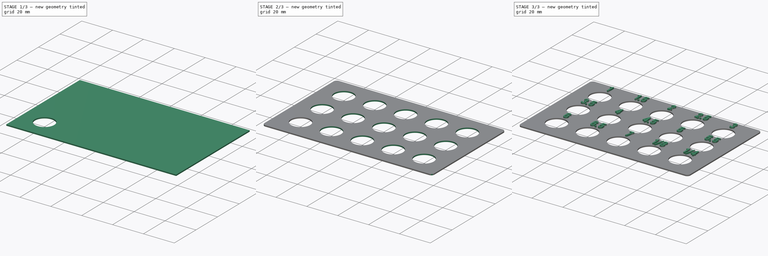
[diagram: build sequence overview — one tinted view per stage of 3, left to right]
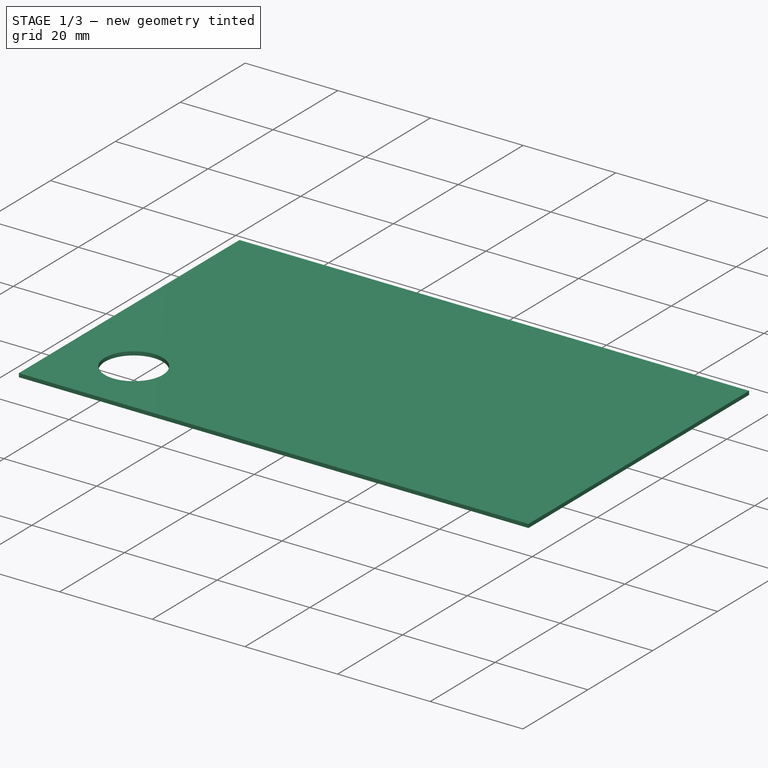
[diagram: stage 1 of 3 — iso view after this stage's code; geometry added in this stage tinted green]
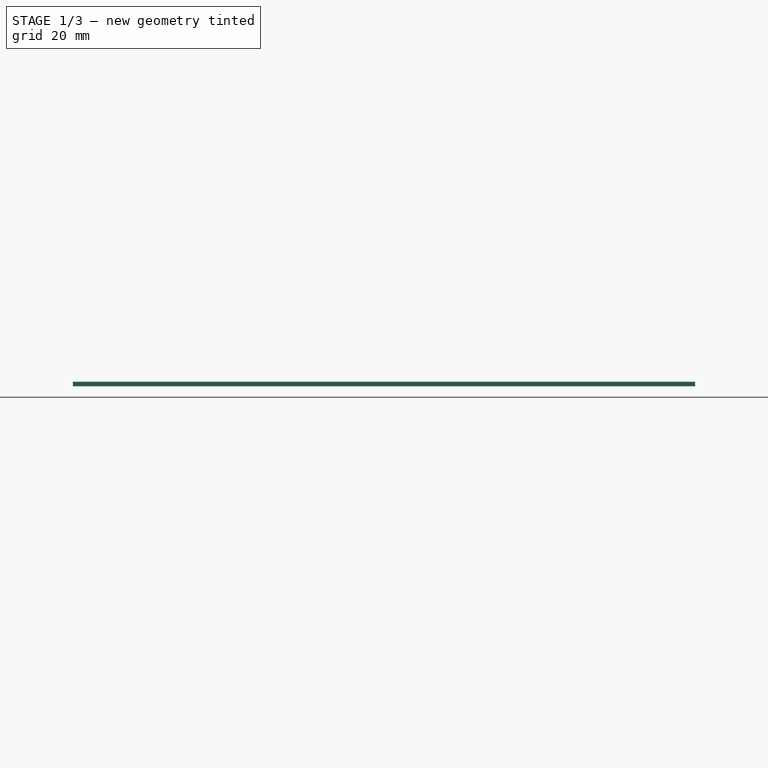
[diagram: stage 1 of 3 — front view after this stage's code; geometry added in this stage tinted green]
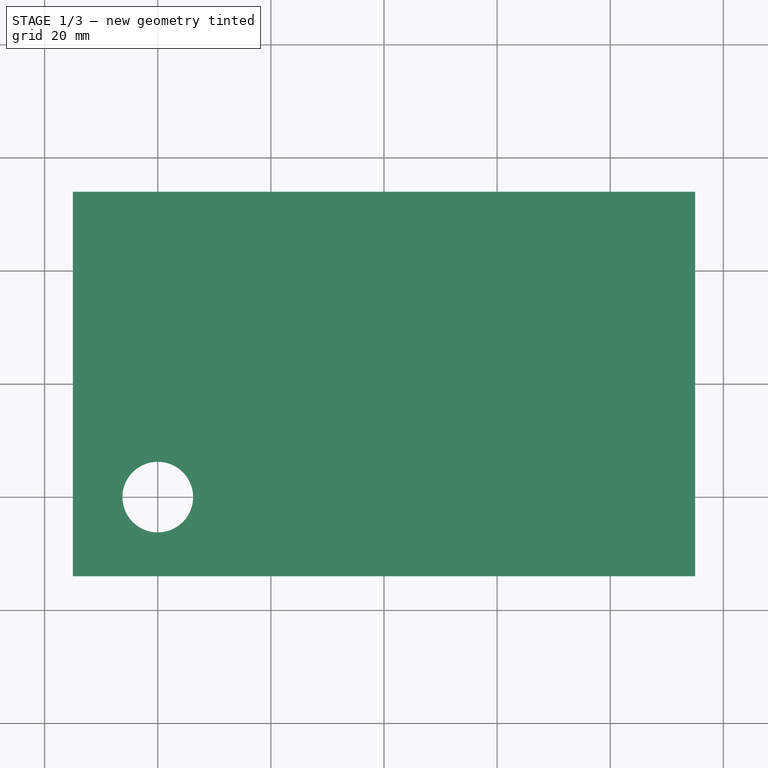
[diagram: stage 1 of 3 — top view after this stage's code; geometry added in this stage tinted green]
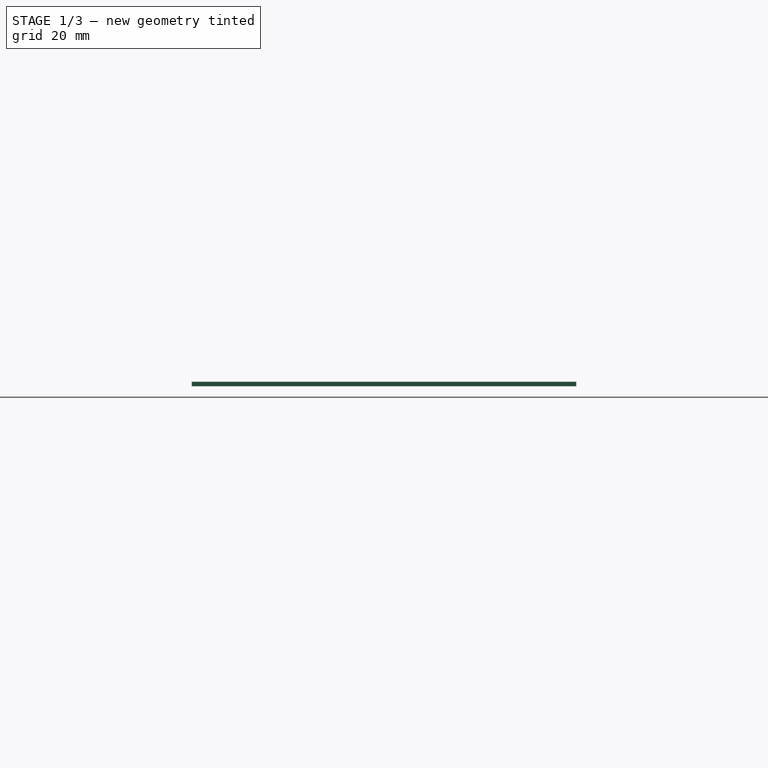
[diagram: stage 1 of 3 — right view after this stage's code; geometry added in this stage tinted green]
FCSTD DOCUMENT  (FreeCAD 2021.1015R24301 +3962 (Git))
Label: er11 box inset
License: All rights reserved
LicenseURL: http://en.wikipedia.org/wiki/All_rights_reserved
objects: Part::Part2DObjectPython×15, Sketcher::SketchObject×2, PartDesign::LinearPattern×2, Part::Compound×2, PartDesign::Pad×1, PartDesign::Pocket×1, Part::Extrusion×1, PartDesign::Fillet×1, PartDesign::Body×1
note: 36 computed .brp shape members not serialized (recipe doc carries the construction recipe); baked Part::Feature solids carry a one-line shape summary decoded from their .brp

FEATURE [Sketcher::SketchObject] Sketch004
  FullyConstrained = true
  MapMode = 5
  Support = -> [XY_Plane001]
  sketch-geometry (4):
    g0: LineSegment StartX=-55 StartY=34 StartZ=0 EndX=55 EndY=34 EndZ=0
    g1: LineSegment StartX=55 StartY=34 StartZ=0 EndX=55 EndY=-34 EndZ=0
    g2: LineSegment StartX=55 StartY=-34 StartZ=0 EndX=-55 EndY=-34 EndZ=0
    g3: LineSegment StartX=-55 StartY=-34 StartZ=0 EndX=-55 EndY=34 EndZ=0
  constraints (11):
    c: Coincident(g0,g1)
    c: Coincident(g1,g2)
    c: Coincident(g2,g3)
    c: Coincident(g3,g0)
    c: Horizontal(g0)
    c: Horizontal(g2)
    c: Vertical(g1)
    c: Vertical(g3)
    c: Symmetric(g1,g0,g-1)
    c: DistanceX(g0,g0) = 110
    c: DistanceY(g1,g1) = 68
FEATURE [PartDesign::Pad] Pad001
  ClaimChildren = false
  Direction = (1,1,1)
  Fit = 0
  FitJoin = 0
  InnerFit = 0
  InnerFitJoin = 0
  InnerTaperAngle = 0
  InnerTaperAngleRev = 0
  Length = 0.8
  Length2 = 100
  Linearize = true
  NewSolid = false
  Profile = -> Sketch004
  Refine = true
  Suppress = false
  Type = 0
  _ProfileBasedVersion = 1
FEATURE [Sketcher::SketchObject] Sketch005
  FullyConstrained = true
  MapMode = 5
  Support = -> [XY_Plane001]
  expr: Constraints[1] = -80mm / 2
  expr: Constraints[2] = -40mm / 2
  sketch-geometry (1):
    g0: Circle CenterX=-40 CenterY=-20 CenterZ=0 NormalX=0 NormalY=0 NormalZ=1 AngleXU=0 Radius=6.25
  constraints (3):
    c: Diameter(g0) = 12.5
    c: DistanceX(g0) = -40
    c: DistanceY(g0) = -20
FEATURE [PartDesign::Pocket] Pocket003
  BaseFeature = -> Pad001
  ClaimChildren = false
  Fit = 0
  FitJoin = 0
  InnerFit = 0
  InnerFitJoin = 0
  InnerTaperAngle = 0
  InnerTaperAngleRev = 0
  Length = 5
  Length2 = 100
  Linearize = true
  NewSolid = false
  Profile = -> Sketch005
  Refine = true
  Reversed = true
  Suppress = false
  Type = 1
  _ProfileBasedVersion = 1
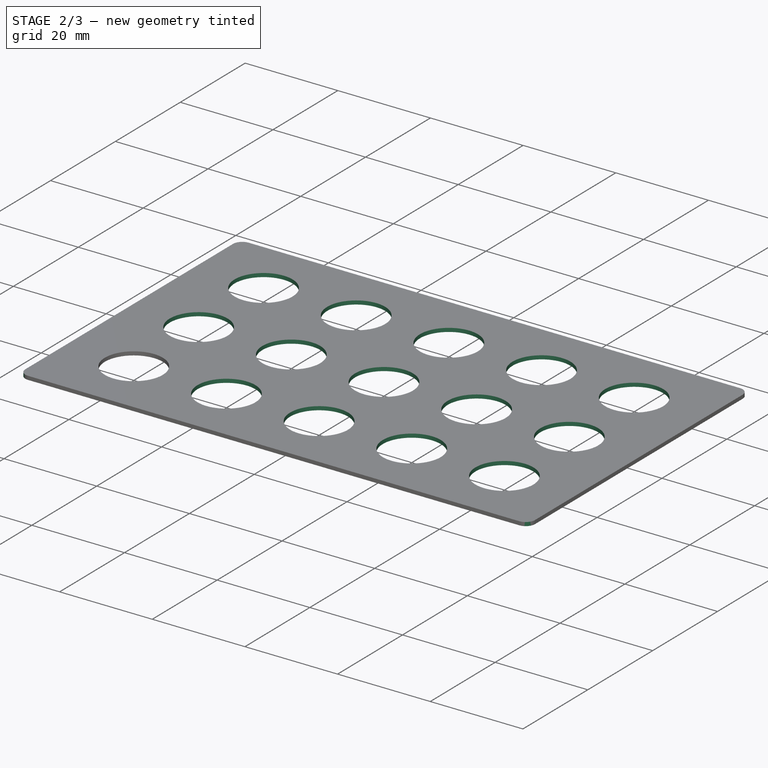
[diagram: stage 2 of 3 — iso view after this stage's code; geometry added in this stage tinted green]
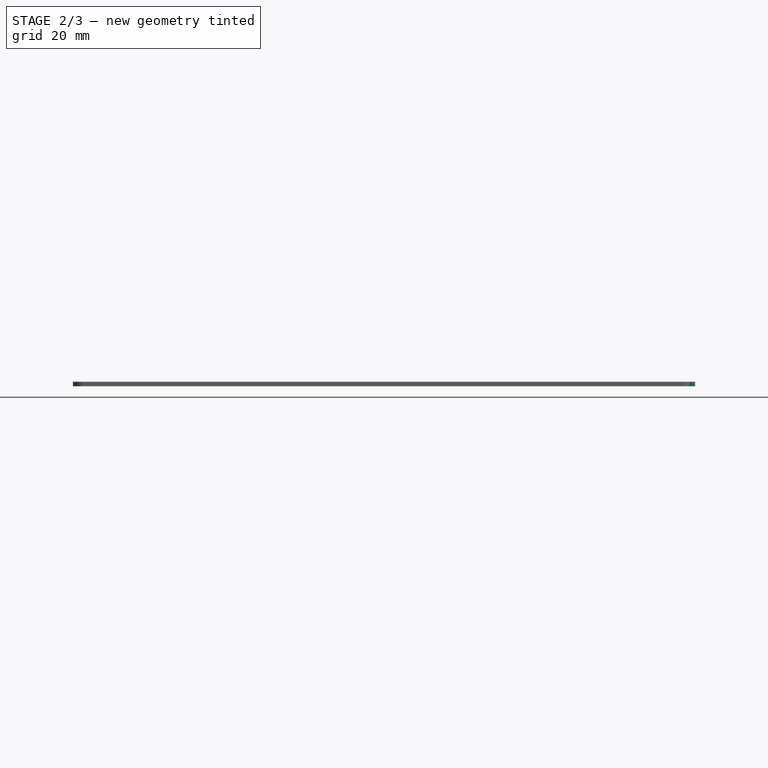
[diagram: stage 2 of 3 — front view after this stage's code; geometry added in this stage tinted green]
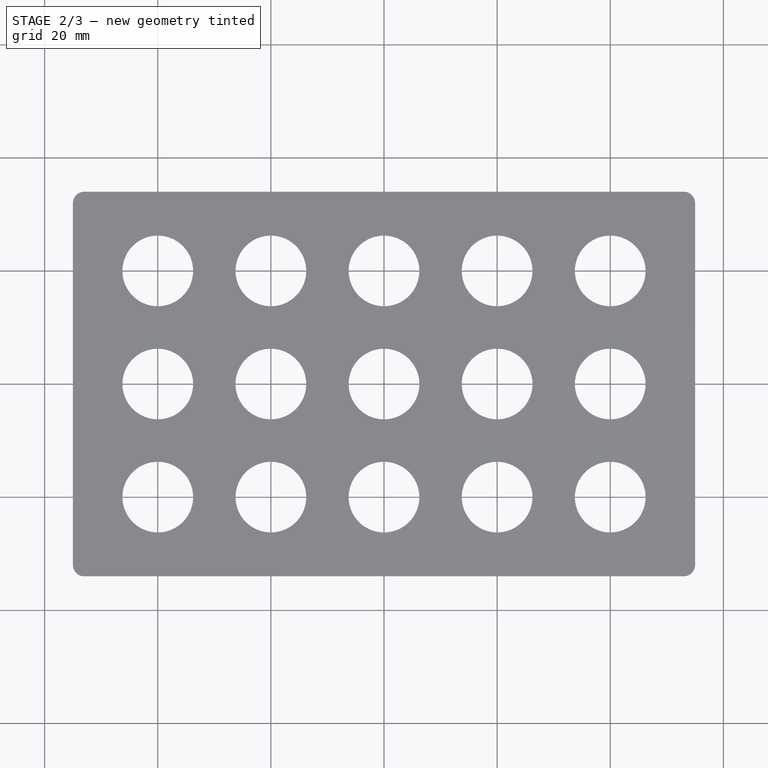
[diagram: stage 2 of 3 — top view after this stage's code; geometry added in this stage tinted green]
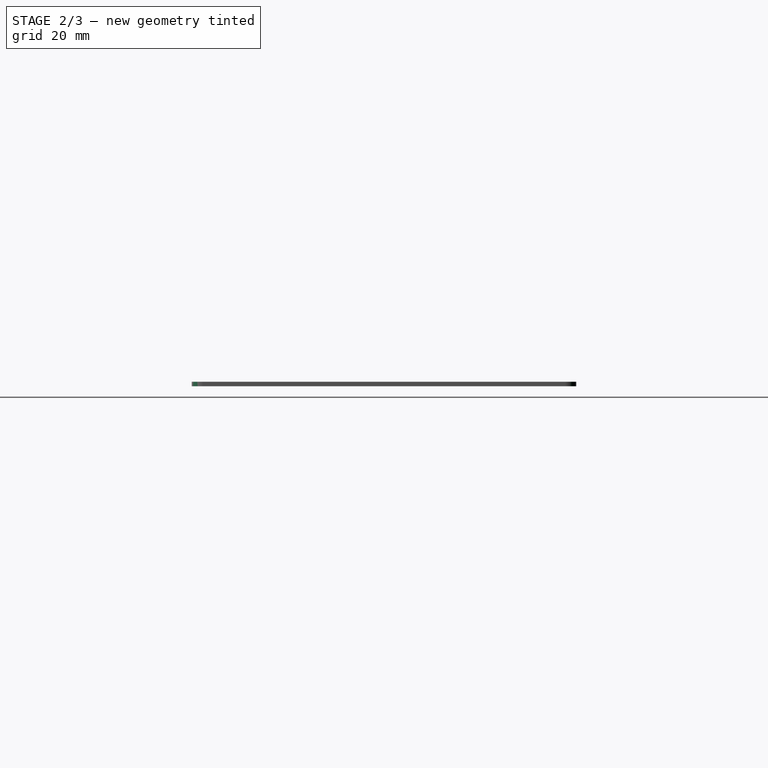
[diagram: stage 2 of 3 — right view after this stage's code; geometry added in this stage tinted green]
FEATURE [PartDesign::LinearPattern] LinearPattern
  BaseFeature = -> Pocket003
  CopyShape = false
  Direction = -> Sketch005 [H_Axis]
  Length = 80
  NewSolid = false
  Occurrences = 5
  OriginalSubs = -> [Pocket003]
  Originals = -> [Pocket003]
  ParallelTransform = true
  Refine = true
  SubTransform = true
  Suppress = false
FEATURE [PartDesign::LinearPattern] LinearPattern001
  BaseFeature = -> LinearPattern
  CopyShape = false
  Direction = -> Y_Axis001
  Length = 40
  NewSolid = false
  Occurrences = 3
  OriginalSubs = -> [LinearPattern,Pocket003]
  Originals = -> [LinearPattern,Pocket003]
  ParallelTransform = true
  Refine = true
  SubTransform = true
  Suppress = false
FEATURE [PartDesign::Fillet] Fillet002
  Base = -> LinearPattern001 [Edge5,Edge8,Edge2,Edge1]
  BaseFeature = -> LinearPattern001
  NewSolid = false
  Radius = 2
  Refine = true
  SupportTransform = false
  Suppress = false
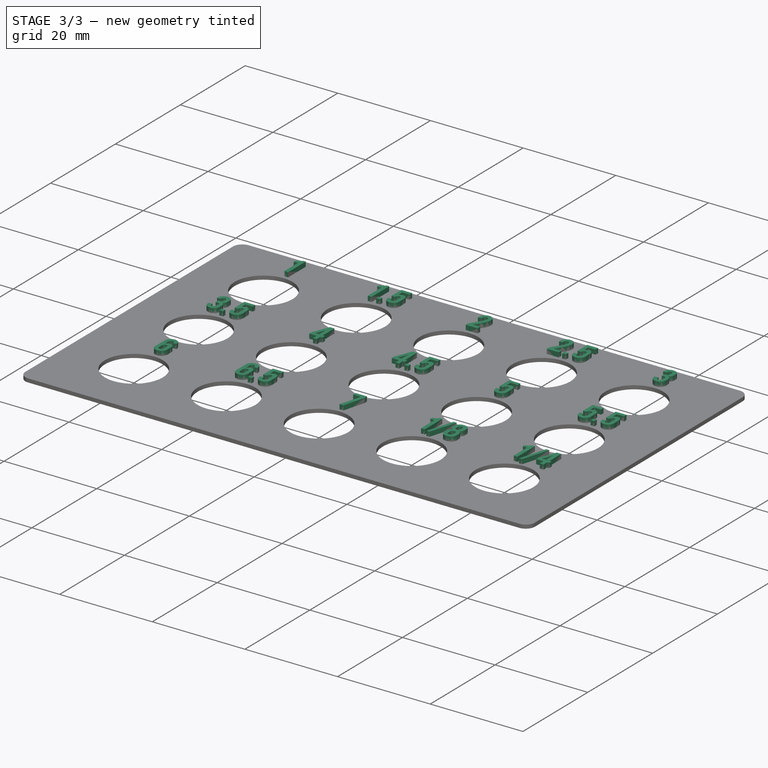
[diagram: stage 3 of 3 — iso view after this stage's code; geometry added in this stage tinted green]
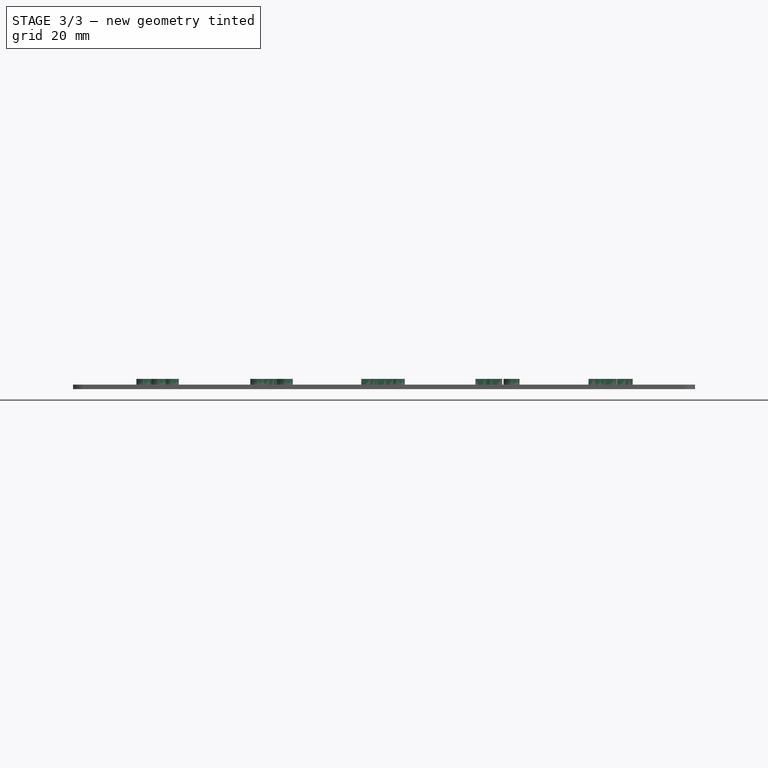
[diagram: stage 3 of 3 — front view after this stage's code; geometry added in this stage tinted green]
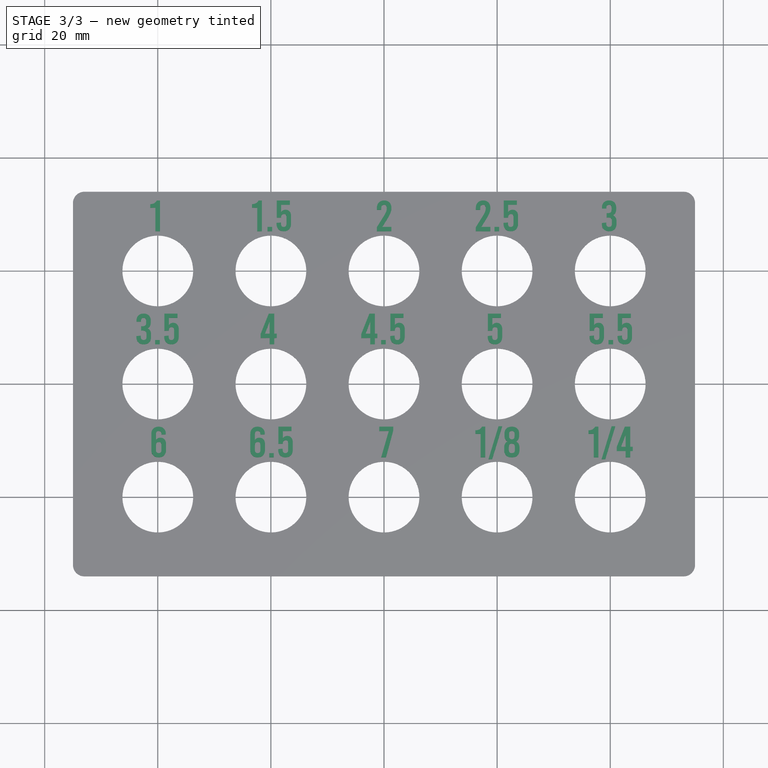
[diagram: stage 3 of 3 — top view after this stage's code; geometry added in this stage tinted green]
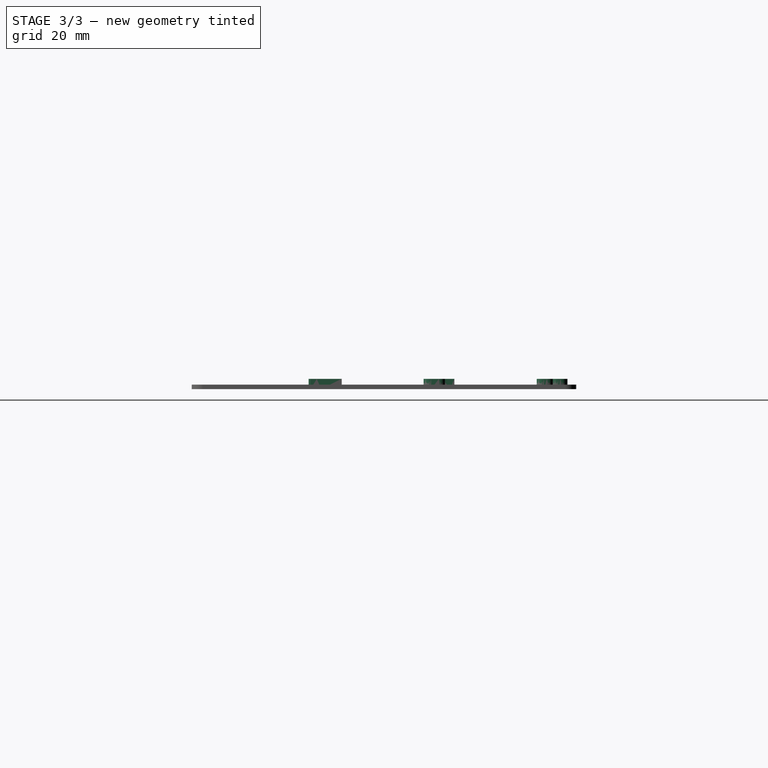
[diagram: stage 3 of 3 — right view after this stage's code; geometry added in this stage tinted green]
FEATURE [Part::Part2DObjectPython] ShapeString  label="ShapeString 3.5"  # Draft 2D object (typed FeaturePython)
  FontFile = <path> box inset/Bebas-Regular.ttf
  Placement = pos=(-44,7,0) rot=(0,0,1;0rad)
  Size = 3
  String = 3.5
  Tracking = 0
FEATURE [Part::Part2DObjectPython] ShapeString001  label="ShapeString 1.5"  # Draft 2D object (typed FeaturePython)
  FontFile = <path> box inset/Bebas-Regular.ttf
  Placement = pos=(-23.5,27,0) rot=(0,0,1;0rad)
  Size = 3
  String = 1.5
  Tracking = 0
FEATURE [Part::Part2DObjectPython] ShapeString002  label="ShapeString 2"  # Draft 2D object (typed FeaturePython)
  FontFile = <path> box inset/Bebas-Regular.ttf
  Placement = pos=(-1.5,27,0) rot=(0,0,1;0rad)
  Size = 3
  String = 2
  Tracking = 0
FEATURE [Part::Part2DObjectPython] ShapeString003  label="ShapeString 2.5"  # Draft 2D object (typed FeaturePython)
  FontFile = <path> box inset/Bebas-Regular.ttf
  Placement = pos=(16,27,0) rot=(0,0,1;0rad)
  Size = 3
  String = 2.5
  Tracking = 0
FEATURE [Part::Part2DObjectPython] ShapeString004  label="ShapeString 3"  # Draft 2D object (typed FeaturePython)
  FontFile = <path> box inset/Bebas-Regular.ttf
  Placement = pos=(38.3,27,0) rot=(0,0,1;0rad)
  Size = 3
  String = 3
  Tracking = 0
FEATURE [Part::Part2DObjectPython] ShapeString005  label="ShapeString 1"  # Draft 2D object (typed FeaturePython)
  FontFile = <path> box inset/Bebas-Regular.ttf
  Placement = pos=(-41.5,27,0) rot=(0,0,1;0rad)
  Size = 3
  String = 1
  Tracking = 0
FEATURE [Part::Part2DObjectPython] ShapeString006  label="ShapeString 4"  # Draft 2D object (typed FeaturePython)
  FontFile = <path> box inset/Bebas-Regular.ttf
  Placement = pos=(-22,7,0) rot=(0,0,1;0rad)
  Size = 3
  String = 4
  Tracking = 0
FEATURE [Part::Part2DObjectPython] ShapeString007  label="ShapeString 4.5"  # Draft 2D object (typed FeaturePython)
  FontFile = <path> box inset/Bebas-Regular.ttf
  Placement = pos=(-4.2,7,0) rot=(0,0,1;0rad)
  Size = 3
  String = 4.5
  Tracking = 0
FEATURE [Part::Part2DObjectPython] ShapeString008  label="ShapeString 5"  # Draft 2D object (typed FeaturePython)
  FontFile = <path> box inset/Bebas-Regular.ttf
  Placement = pos=(18,7,0) rot=(0,0,1;0rad)
  Size = 3
  String = 5
  Tracking = 0
FEATURE [Part::Part2DObjectPython] ShapeString009  label="ShapeString 5.5"  # Draft 2D object (typed FeaturePython)
  FontFile = <path> box inset/Bebas-Regular.ttf
  Placement = pos=(36,7,0) rot=(0,0,1;0rad)
  Size = 3
  String = 5.5
  Tracking = 0
FEATURE [Part::Part2DObjectPython] ShapeString010  label="ShapeString 6"  # Draft 2D object (typed FeaturePython)
  FontFile = <path> box inset/Bebas-Regular.ttf
  Placement = pos=(-41.5,-13,0) rot=(0,0,1;0rad)
  Size = 3
  String = 6
  Tracking = 0
FEATURE [Part::Part2DObjectPython] ShapeString011  label="ShapeString 6.5"  # Draft 2D object (typed FeaturePython)
  FontFile = <path> box inset/Bebas-Regular.ttf
  Placement = pos=(-24,-13,0) rot=(0,0,1;0rad)
  Size = 3
  String = 6.5
  Tracking = 0
FEATURE [Part::Part2DObjectPython] ShapeString012  label="ShapeString 7"  # Draft 2D object (typed FeaturePython)
  FontFile = <path> box inset/Bebas-Regular.ttf
  Placement = pos=(-1,-13,0) rot=(0,0,1;0rad)
  Size = 3
  String = 7
  Tracking = 0
FEATURE [Part::Part2DObjectPython] ShapeString013  label="ShapeString 1/8"  # Draft 2D object (typed FeaturePython)
  FontFile = <path> box inset/Bebas-Regular.ttf
  Placement = pos=(16,-13,0) rot=(0,0,1;0rad)
  Size = 3
  String = 1/8
  Tracking = 0
FEATURE [Part::Part2DObjectPython] ShapeString014  label="ShapeString 1/4"  # Draft 2D object (typed FeaturePython)
  FontFile = <path> box inset/Bebas-Regular.ttf
  Placement = pos=(36,-13,0) rot=(0,0,1;0rad)
  Size = 3
  String = 1/4
  Tracking = 0
FEATURE [Part::Compound] Compound
  Links = -> [ShapeString,ShapeString001,ShapeString002,ShapeString003,ShapeString004,ShapeString005,ShapeString006,ShapeString007,ShapeString008,ShapeString009,ShapeString010,ShapeString011,ShapeString012,ShapeString013,ShapeString014]
FEATURE [Part::Extrusion] Extrude
  Base = -> Compound
  Dir = (0,0,1)
  DirMode = 2
  FaceMakerClass = Part::FaceMakerBullseye
  InnerTaperAngle = 0
  InnerTaperAngleRev = 0
  LengthFwd = 1.8
  LengthRev = 0
  Linearize = true
  Solid = false
  Symmetric = false
FEATURE [PartDesign::Body] Body001
  AutoGroupSolids = false
  ExportMode = 0
  Group = -> [Sketch004,Pad001,Sketch005,Pocket003,LinearPattern,LinearPattern001,Fillet002]
  Origin = -> Origin001
  Tip = -> Fillet002
  _ExportChildren = -> [Pad001,Pocket003,LinearPattern,LinearPattern001,Fillet002]
  _GroupVersion = 1
FEATURE [Part::Compound] Compound001  label="collet box inset"
  Links = -> [Body001,Extrude]
note: 15 file-system paths scrubbed to <path> (originals preserved in the JSON sidecar)
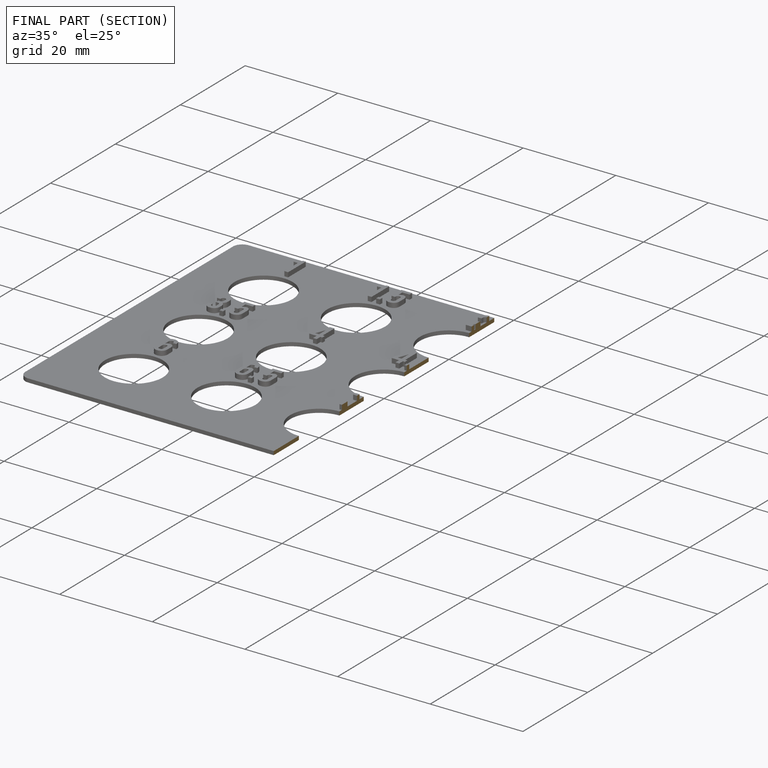
[diagram: finished part — half-section view (interior)]
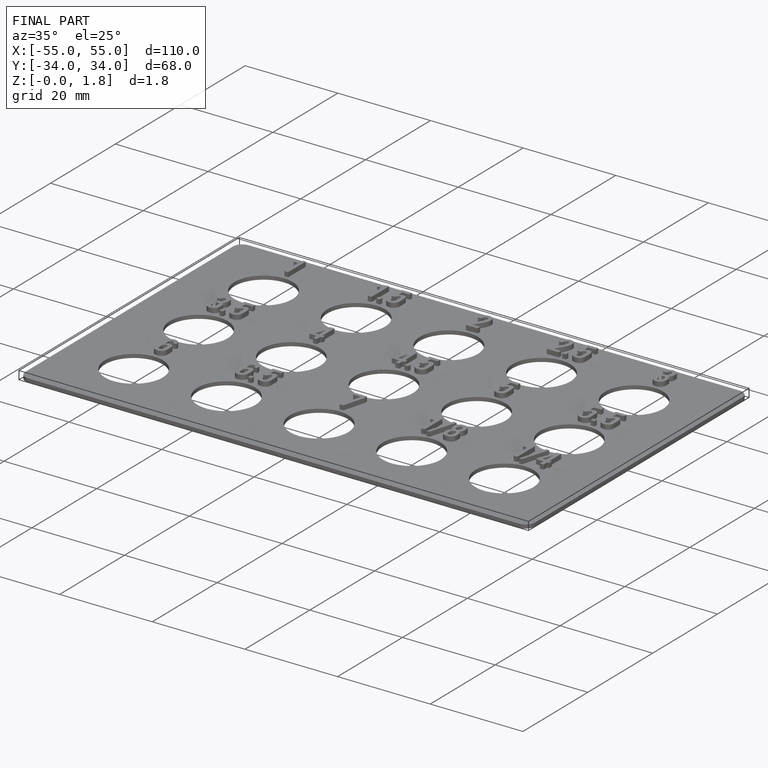
[diagram: finished part — iso view with bounding-box wireframe]
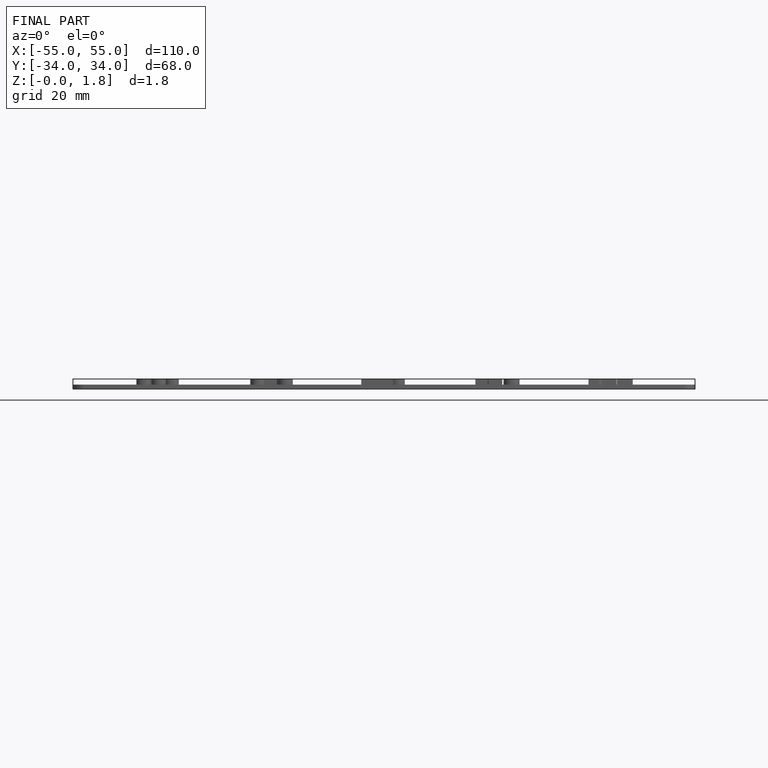
[diagram: finished part — front view with bounding-box wireframe]
